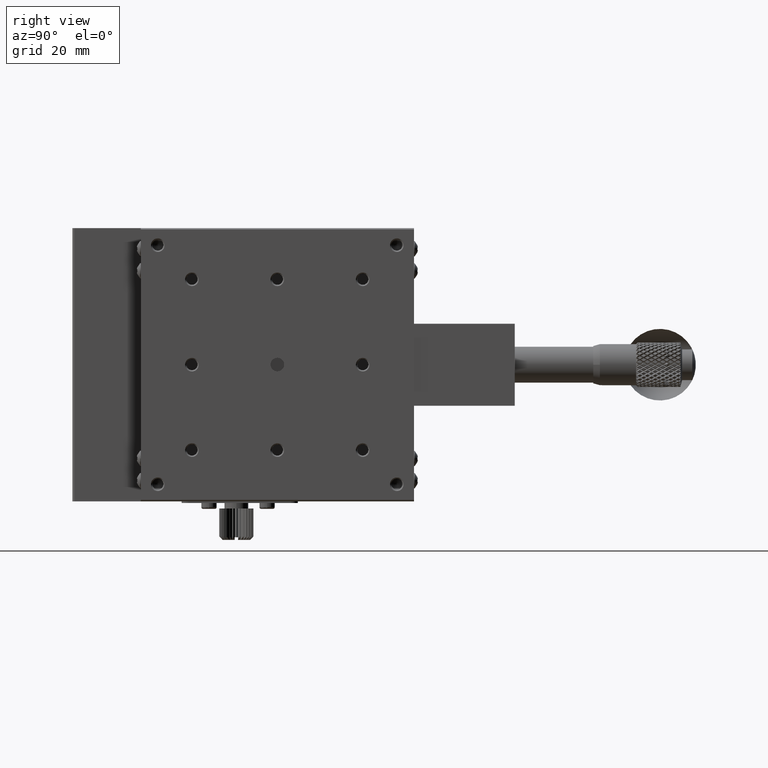
[diagram: clean part render]
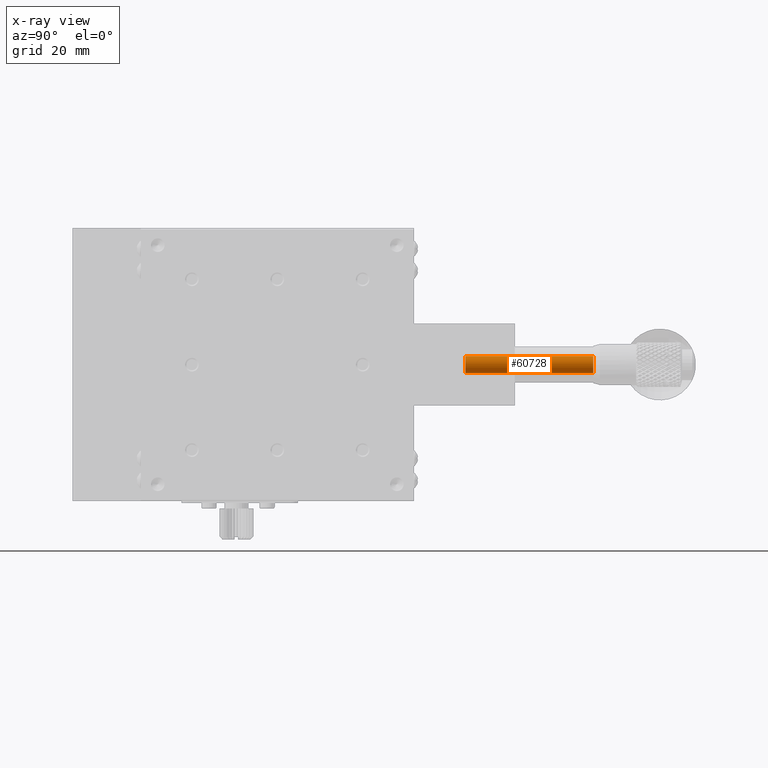
[diagram: x-ray — body ghosted, one internal face saturated and labeled with its STEP entity id]
A machine part, right view, then the same camera in x-ray: the body is ghosted and one INTERNAL B-rep face — a face not visible from any outside direction — is saturated and labeled: STEP entity #60728.
In plain terms, the highlighted cylindrical surface (bore or boss wall) has radius 2.5 mm, axis along (0, 1, 0).
Its self-contained STEP definition (entity closure, byte-faithful):
#2734 = CARTESIAN_POINT ( 'NONE',  ( 4.500000000000000888, 115.0000000000000000, -37.50000000000000000 ) ) ;
#8221 = DIRECTION ( 'NONE',  ( -0.000000000000000000, -1.000000000000000000, -0.000000000000000000 ) ) ;
#9711 = DIRECTION ( 'NONE',  ( 0.000000000000000000, 1.000000000000000000, 0.000000000000000000 ) ) ;
#18586 = CIRCLE ( 'NONE', #106940, 2.500000000000002220 ) ;
#19472 = CARTESIAN_POINT ( 'NONE',  ( 4.500000000000000888, 152.5000000000000000, -37.50000000000000000 ) ) ;
#33003 = DIRECTION ( 'NONE',  ( 0.000000000000000000, 1.000000000000000000, 0.000000000000000000 ) ) ;
#34056 = FACE_OUTER_BOUND ( 'NONE', #91435, .T. ) ;
#43881 = VERTEX_POINT ( 'NONE', #2734 ) ;
#47781 = DIRECTION ( 'NONE',  ( 0.000000000000000000, 0.000000000000000000, 1.000000000000000000 ) ) ;
#48857 = CARTESIAN_POINT ( 'NONE',  ( 4.500000000000000888, 152.5000000000000000, -40.00000000000000000 ) ) ;
#49827 = FACE_OUTER_BOUND ( 'NONE', #81372, .T. ) ;
#50163 = ORIENTED_EDGE ( 'NONE', *, *, #104918, .F. ) ;
#59047 = CYLINDRICAL_SURFACE ( 'NONE', #105178, 2.500000000000002220 ) ;
#60728 = ADVANCED_FACE ( 'NONE', ( #49827, #34056 ), #59047, .F. ) ;
#65612 = DIRECTION ( 'NONE',  ( 0.000000000000000000, 0.000000000000000000, 1.000000000000000000 ) ) ;
#65639 = DIRECTION ( 'NONE',  ( 0.000000000000000000, 0.000000000000000000, 1.000000000000000000 ) ) ;
#68891 = VERTEX_POINT ( 'NONE', #19472 ) ;
#74064 = CIRCLE ( 'NONE', #87877, 2.500000000000002220 ) ;
#81372 = EDGE_LOOP ( 'NONE', ( #85034 ) ) ;
#83952 = CARTESIAN_POINT ( 'NONE',  ( 4.500000000000000888, 152.5000000000000000, -40.00000000000000000 ) ) ;
#85034 = ORIENTED_EDGE ( 'NONE', *, *, #104604, .F. ) ;
#87877 = AXIS2_PLACEMENT_3D ( 'NONE', #48857, #8221, #47781 ) ;
#91435 = EDGE_LOOP ( 'NONE', ( #50163 ) ) ;
#98093 = CARTESIAN_POINT ( 'NONE',  ( 4.500000000000000888, 115.0000000000000000, -40.00000000000000000 ) ) ;
#104604 = EDGE_CURVE ( 'NONE', #43881, #43881, #18586, .T. ) ;
#104918 = EDGE_CURVE ( 'NONE', #68891, #68891, #74064, .T. ) ;
#105178 = AXIS2_PLACEMENT_3D ( 'NONE', #83952, #9711, #65639 ) ;
#106940 = AXIS2_PLACEMENT_3D ( 'NONE', #98093, #33003, #65612 ) ;